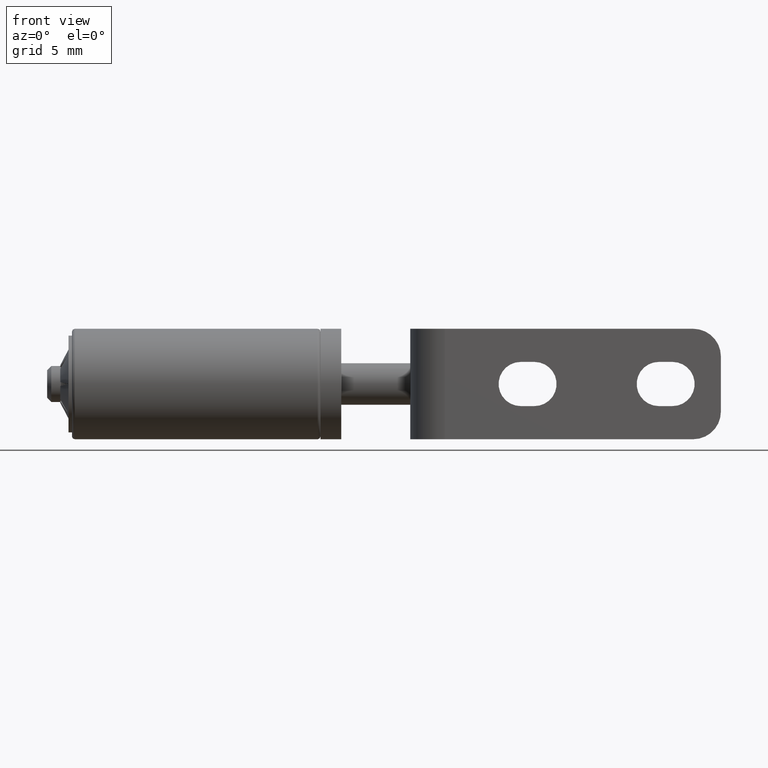
[diagram: clean part render]
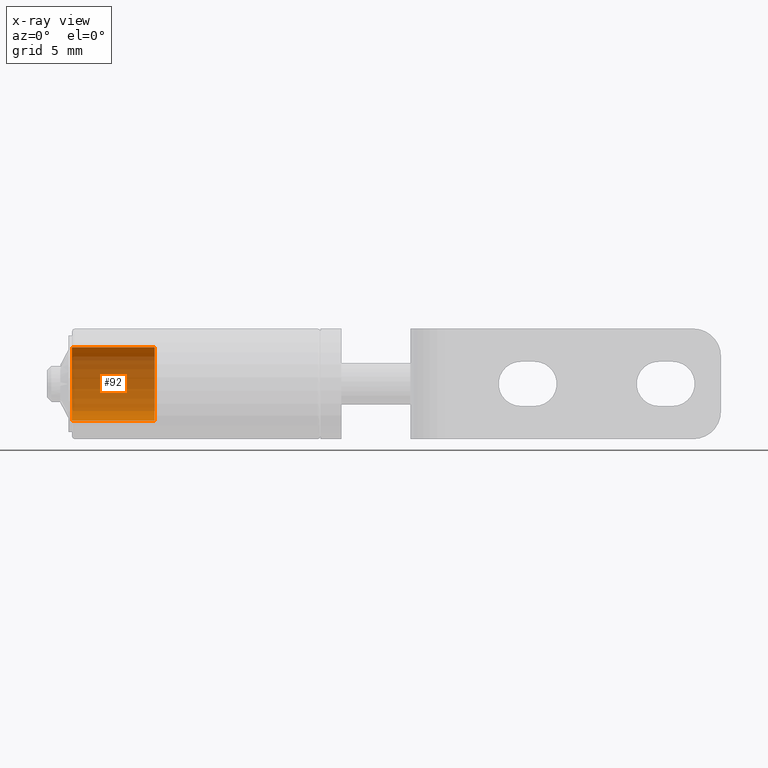
[diagram: x-ray — body ghosted, one internal face saturated and labeled with its STEP entity id]
A machine part, front view, then the same camera in x-ray: the body is ghosted and one INTERNAL B-rep face — a face not visible from any outside direction — is saturated and labeled: STEP entity #92.
In plain terms, the highlighted cylindrical surface (partial cylindrical patch) has radius 3 mm, axis along (-1, -0, -0).
Its self-contained STEP definition (entity closure, byte-faithful):
#92=ADVANCED_FACE('',(#738),#737,.F.);
#737=CYLINDRICAL_SURFACE('',#2227,3.00000000000E+00);
#738=FACE_OUTER_BOUND('',#2228,.T.);
#2224=CARTESIAN_POINT('',(-6.00000000000E+00,0.00000000000E+00,0.00000000000E+00));
#2225=DIRECTION('',(-1.00000000000E+00,-0.00000000000E+00,-0.00000000000E+00));
#2226=DIRECTION('',(-0.00000000000E+00,-0.00000000000E+00,1.00000000000E+00));
#2227=AXIS2_PLACEMENT_3D('',#2224,#2225,#2226);
#2228=EDGE_LOOP('',(#3444,#3445,#3446,#3447));
#3444=ORIENTED_EDGE('',*,*,#4309,.T.);
#3445=ORIENTED_EDGE('',*,*,#4310,.T.);
#3446=ORIENTED_EDGE('',*,*,#4216,.F.);
#3447=ORIENTED_EDGE('',*,*,#4311,.F.);
#4216=EDGE_CURVE('',#5369,#5376,#5377,.T.);
#4309=EDGE_CURVE('',#5999,#6000,#6001,.T.);
#4310=EDGE_CURVE('',#6000,#5376,#6007,.T.);
#4311=EDGE_CURVE('',#5999,#5369,#6013,.T.);
#5369=VERTEX_POINT('',#8243);
#5376=VERTEX_POINT('',#8248);
#5377=CIRCLE('',#8252,3.00000000000E+00);
#5999=VERTEX_POINT('',#8628);
#6000=VERTEX_POINT('',#8629);
#6001=CIRCLE('',#8633,3.00000000000E+00);
#6007=LINE('',#8634,#8635);
#6013=LINE('',#8637,#8638);
#8243=CARTESIAN_POINT('',(-9.00000000000E+00,1.38419650945E+00,-2.66157848339E+00));
#8248=CARTESIAN_POINT('',(-9.00000000000E+00,1.38419650945E+00,2.66157848339E+00));
#8249=CARTESIAN_POINT('',(-9.00000000000E+00,0.00000000000E+00,0.00000000000E+00));
#8250=DIRECTION('',(1.00000000000E+00,0.00000000000E+00,0.00000000000E+00));
#8251=DIRECTION('',(-0.00000000000E+00,-4.61398836484E-01,8.87192827795E-01));
#8252=AXIS2_PLACEMENT_3D('',#8249,#8250,#8251);
#8628=CARTESIAN_POINT('',(-3.00000000000E+00,1.38419650945E+00,-2.66157848339E+00));
#8629=CARTESIAN_POINT('',(-3.00000000000E+00,1.38419650945E+00,2.66157848339E+00));
#8630=CARTESIAN_POINT('',(-3.00000000000E+00,0.00000000000E+00,0.00000000000E+00));
#8631=DIRECTION('',(1.00000000000E+00,0.00000000000E+00,0.00000000000E+00));
#8632=DIRECTION('',(-0.00000000000E+00,-4.61398836484E-01,8.87192827795E-01));
#8633=AXIS2_PLACEMENT_3D('',#8630,#8631,#8632);
#8634=CARTESIAN_POINT('',(-3.00000000000E+00,1.38419650945E+00,2.66157848339E+00));
#8635=VECTOR('',#8636,6.00000000000E+00);
#8636=DIRECTION('',(-1.00000000000E+00,0.00000000000E+00,0.00000000000E+00));
#8637=CARTESIAN_POINT('',(-3.00000000000E+00,1.38419650945E+00,-2.66157848339E+00));
#8638=VECTOR('',#8639,6.00000000000E+00);
#8639=DIRECTION('',(-1.00000000000E+00,0.00000000000E+00,0.00000000000E+00));